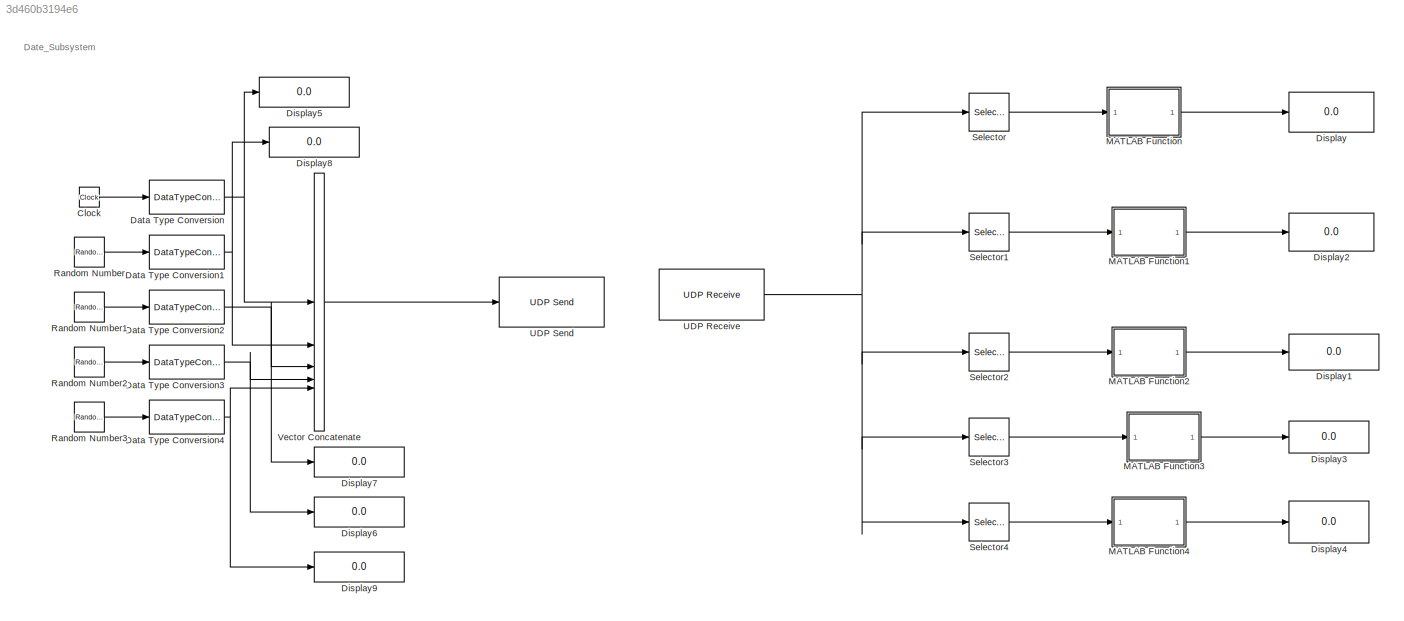
MODEL slx_3d460b3194e6
KIND model
CONFIG AbsTol = auto
CONFIG EnableMultiTasking = off
CONFIG FixedStep = 0.01
CONFIG MaxStep = auto
CONFIG MinStep = auto
CONFIG RelTol = 1e-3
CONFIG SampleTimeConstraint = Unconstrained
CONFIG SolverName = FixedStepDiscrete
CONFIG StartTime = 0.0
CONFIG StopTime = inf
BLOCK [Clock] Clock
BLOCK [DataTypeConversion] Data Type Conversion
  OutDataTypeStr = single
  RndMeth = Floor
  SaturateOnIntegerOverflow = off
BLOCK [DataTypeConversion] Data Type Conversion1
  OutDataTypeStr = single
  RndMeth = Floor
  SaturateOnIntegerOverflow = off
BLOCK [DataTypeConversion] Data Type Conversion2
  OutDataTypeStr = single
  RndMeth = Floor
  SaturateOnIntegerOverflow = off
BLOCK [DataTypeConversion] Data Type Conversion3
  OutDataTypeStr = single
  RndMeth = Floor
  SaturateOnIntegerOverflow = off
BLOCK [DataTypeConversion] Data Type Conversion4
  OutDataTypeStr = single
  RndMeth = Floor
  SaturateOnIntegerOverflow = off
BLOCK [Display] Display
  Decimation = 1
BLOCK [Display] Display1
  Decimation = 1
BLOCK [Display] Display2
  Decimation = 1
BLOCK [Display] Display3
  Decimation = 1
BLOCK [Display] Display4
  Decimation = 1
BLOCK [Display] Display5
  Decimation = 1
BLOCK [Display] Display6
  Decimation = 1
BLOCK [Display] Display7
  Decimation = 1
BLOCK [Display] Display8
  Decimation = 1
BLOCK [Display] Display9
  Decimation = 1
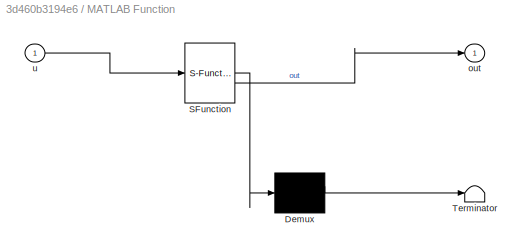
BLOCK [SubSystem] MATLAB Function
  ErrorFcn = Stateflow.Translate.translate
  PermitHierarchicalResolution = ExplicitOnly
  SFBlockType = MATLAB Function
  TreatAsAtomicUnit = on
BLOCK [Demux] MATLAB Function/ Demux 
  Outputs = 1
BLOCK [S-Function] MATLAB Function/ SFunction 
  EnableBusSupport = on
  FunctionName = sf_sfun
  PortCounts = [1 2]
  SFcnIsStateOwnerBlock = off
  SFunctionDeploymentMode = off
  Tag = Stateflow S-Function 2
BLOCK [Terminator] MATLAB Function/ Terminator 
BLOCK [Outport] MATLAB Function/out
BLOCK [Inport] MATLAB Function/u
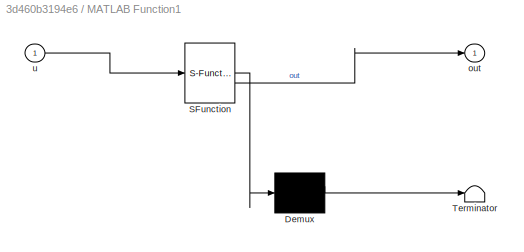
BLOCK [SubSystem] MATLAB Function1
  ErrorFcn = Stateflow.Translate.translate
  PermitHierarchicalResolution = ExplicitOnly
  SFBlockType = MATLAB Function
  TreatAsAtomicUnit = on
BLOCK [Demux] MATLAB Function1/ Demux 
  Outputs = 1
BLOCK [S-Function] MATLAB Function1/ SFunction 
  EnableBusSupport = on
  FunctionName = sf_sfun
  PortCounts = [1 2]
  SFcnIsStateOwnerBlock = off
  SFunctionDeploymentMode = off
  Tag = Stateflow S-Function 1
BLOCK [Terminator] MATLAB Function1/ Terminator 
BLOCK [Outport] MATLAB Function1/out
BLOCK [Inport] MATLAB Function1/u
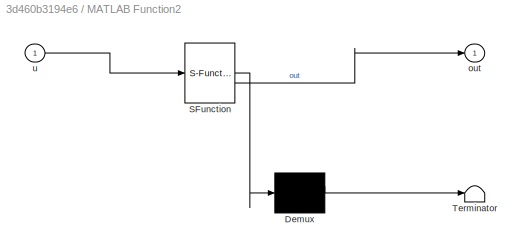
BLOCK [SubSystem] MATLAB Function2
  ErrorFcn = Stateflow.Translate.translate
  PermitHierarchicalResolution = ExplicitOnly
  SFBlockType = MATLAB Function
  TreatAsAtomicUnit = on
BLOCK [Demux] MATLAB Function2/ Demux 
  Outputs = 1
BLOCK [S-Function] MATLAB Function2/ SFunction 
  EnableBusSupport = on
  FunctionName = sf_sfun
  PortCounts = [1 2]
  SFcnIsStateOwnerBlock = off
  SFunctionDeploymentMode = off
  Tag = Stateflow S-Function 3
BLOCK [Terminator] MATLAB Function2/ Terminator 
BLOCK [Outport] MATLAB Function2/out
BLOCK [Inport] MATLAB Function2/u
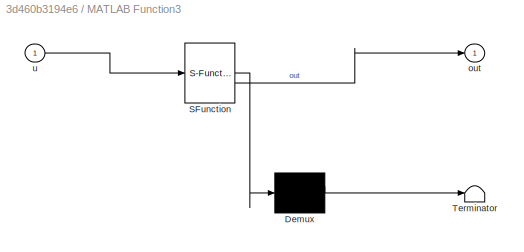
BLOCK [SubSystem] MATLAB Function3
  ErrorFcn = Stateflow.Translate.translate
  PermitHierarchicalResolution = ExplicitOnly
  SFBlockType = MATLAB Function
  TreatAsAtomicUnit = on
BLOCK [Demux] MATLAB Function3/ Demux 
  Outputs = 1
BLOCK [S-Function] MATLAB Function3/ SFunction 
  EnableBusSupport = on
  FunctionName = sf_sfun
  PortCounts = [1 2]
  SFcnIsStateOwnerBlock = off
  SFunctionDeploymentMode = off
  Tag = Stateflow S-Function 4
BLOCK [Terminator] MATLAB Function3/ Terminator 
BLOCK [Outport] MATLAB Function3/out
BLOCK [Inport] MATLAB Function3/u
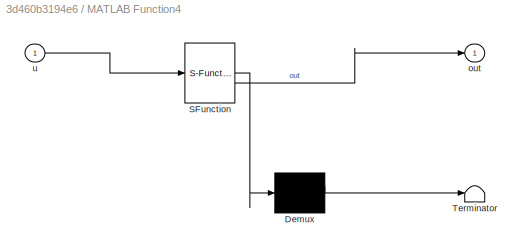
BLOCK [SubSystem] MATLAB Function4
  ErrorFcn = Stateflow.Translate.translate
  PermitHierarchicalResolution = ExplicitOnly
  SFBlockType = MATLAB Function
  TreatAsAtomicUnit = on
BLOCK [Demux] MATLAB Function4/ Demux 
  Outputs = 1
BLOCK [S-Function] MATLAB Function4/ SFunction 
  EnableBusSupport = on
  FunctionName = sf_sfun
  PortCounts = [1 2]
  SFcnIsStateOwnerBlock = off
  SFunctionDeploymentMode = off
  Tag = Stateflow S-Function 5
BLOCK [Terminator] MATLAB Function4/ Terminator 
BLOCK [Outport] MATLAB Function4/out
BLOCK [Inport] MATLAB Function4/u
BLOCK [RandomNumber] Random Number
  SampleTime = 0.01
  Seed = 3
BLOCK [RandomNumber] Random Number1
  SampleTime = .01
  Seed = 4
BLOCK [RandomNumber] Random Number2
  SampleTime = 0.01
  Seed = 5
BLOCK [RandomNumber] Random Number3
  SampleTime = 0.01
  Seed = 6
BLOCK [Selector] Selector
  IndexOptions = Index vector (dialog)
  Indices = [1 2 3 4]
  InputPortWidth = 20
  OutputSizes = 1
BLOCK [Selector] Selector1
  IndexOptions = Index vector (dialog)
  Indices = [5 6 7 8]
  InputPortWidth = 20
  OutputSizes = 1
BLOCK [Selector] Selector2
  IndexOptions = Index vector (dialog)
  Indices = [9 10 11 12]
  InputPortWidth = 20
  OutputSizes = 1
BLOCK [Selector] Selector3
  IndexOptions = Index vector (dialog)
  Indices = [13 14 15 16]
  InputPortWidth = 20
  OutputSizes = 1
BLOCK [Selector] Selector4
  IndexOptions = Index vector (dialog)
  Indices = [17 18 19 20]
  InputPortWidth = 20
  OutputSizes = 1
BLOCK [Reference] UDP Receive  REF=dspnetwork/UDP Receive
  LibrarySourceBlock = dspsrcs4/UDP Receive
  SourceBlock = dspnetwork/UDP Receive
  SourceType = UDP Receive
BLOCK [Reference] UDP Send  REF=dspnetwork/UDP Send
  LibrarySourceBlock = dspsnks4/UDP Send
  SourceBlock = dspnetwork/UDP Send
  SourceType = UDP Send
BLOCK [Concatenate] Vector Concatenate
  Mode = Multidimensional array
  NumInputs = 5
ANNOTATION (root): Date_Subsystem
LINE Clock:1 -> Data Type Conversion:1
NET Data Type Conversion1:1 -> Display8:1, Vector Concatenate:2
NET Data Type Conversion2:1 -> Display7:1, Vector Concatenate:3
NET Data Type Conversion3:1 -> Display6:1, Vector Concatenate:4
NET Data Type Conversion4:1 -> Display9:1, Vector Concatenate:5
NET Data Type Conversion:1 -> Display5:1, Vector Concatenate:1
LINE MATLAB Function1:1 -> Display2:1
LINE MATLAB Function2:1 -> Display1:1
LINE MATLAB Function3:1 -> Display3:1
LINE MATLAB Function4:1 -> Display4:1
LINE MATLAB Function:1 -> Display:1
LINE Random Number1:1 -> Data Type Conversion2:1
LINE Random Number2:1 -> Data Type Conversion3:1
LINE Random Number3:1 -> Data Type Conversion4:1
LINE Random Number:1 -> Data Type Conversion1:1
LINE Selector1:1 -> MATLAB Function1:1
LINE Selector2:1 -> MATLAB Function2:1
LINE Selector3:1 -> MATLAB Function3:1
LINE Selector4:1 -> MATLAB Function4:1
LINE Selector:1 -> MATLAB Function:1
NET UDP Receive:1 -> Selector1:1, Selector2:1, Selector3:1, Selector4:1, Selector:1
LINE Vector Concatenate:1 -> UDP Send:1
note: NET lines group one-source signal fan-out (src -> all destinations, sorted); 1:1 wires keep LINE
CHART MATLAB Function states=1 transitions=1
  STATE_LABEL 'eML_blk_kernel()'
  STATE_LABEL "SCRIPT:\nfunction out = fcn(u)\n%#codegen\n% u: [4x1] uint8\n% out: single scalar\n\ncoder.varsize('out', [1 1], [0 0]); % 明确输出大小\nout = typecast(uint8(u), 'single'); % 小端字节序转换\nend\n"
CHART MATLAB Function2 states=1 transitions=1
  STATE_LABEL 'eML_blk_kernel()'
  STATE_LABEL "SCRIPT:\nfunction out = fcn(u)\n%#codegen\n% u: [4x1] uint8\n% out: single scalar\n\ncoder.varsize('out', [1 1], [0 0]); % 明确输出大小\nout = typecast(uint8(u), 'single'); % 小端字节序转换\nend\n"
CHART MATLAB Function3 states=1 transitions=1
  STATE_LABEL 'eML_blk_kernel()'
  STATE_LABEL "SCRIPT:\nfunction out = fcn(u)\n%#codegen\n% u: [4x1] uint8\n% out: single scalar\n\ncoder.varsize('out', [1 1], [0 0]); % 明确输出大小\nout = typecast(uint8(u), 'single'); % 小端字节序转换\nend\n"
CHART MATLAB Function4 states=1 transitions=1
  STATE_LABEL 'eML_blk_kernel()'
  STATE_LABEL "SCRIPT:\nfunction out = fcn(u)\n%#codegen\n% u: [4x1] uint8\n% out: single scalar\n\ncoder.varsize('out', [1 1], [0 0]); % 明确输出大小\nout = typecast(uint8(u), 'single'); % 小端字节序转换\nend\n"
CHART MATLAB Function1 states=1 transitions=1
  STATE_LABEL 'eML_blk_kernel()'
  STATE_LABEL "SCRIPT:\nfunction out = fcn(u)\n%#codegen\n% u: [4x1] uint8\n% out: single scalar\n\ncoder.varsize('out', [1 1], [0 0]); % 明确输出大小\nout = typecast(uint8(u), 'single'); % 小端字节序转换\nend\n"
CHART  states=0 transitions=0
CHART  states=0 transitions=0
CHART  states=0 transitions=0
CHART  states=0 transitions=0
CHART  states=0 transitions=0
